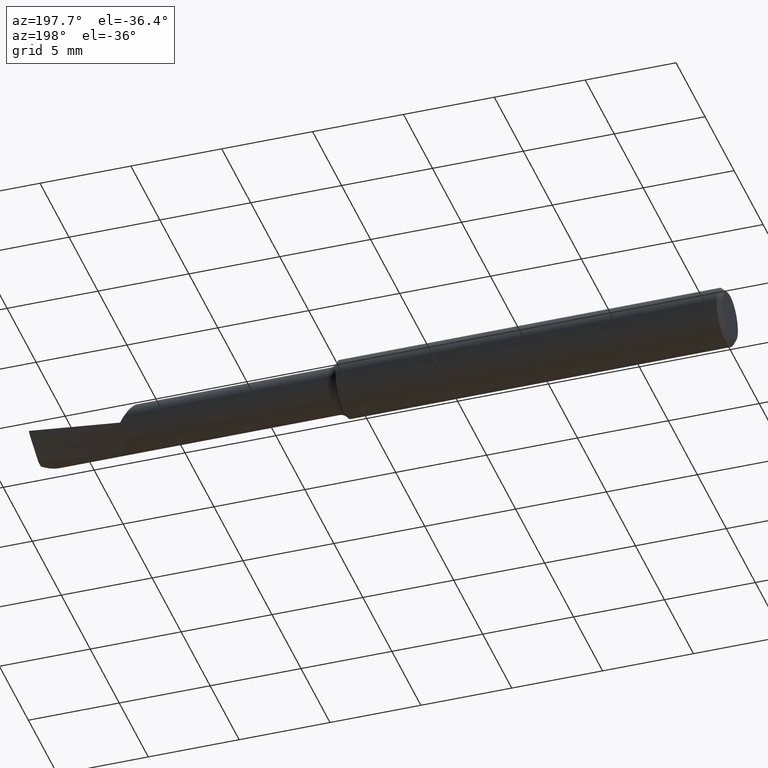
[diagram: clean part render]
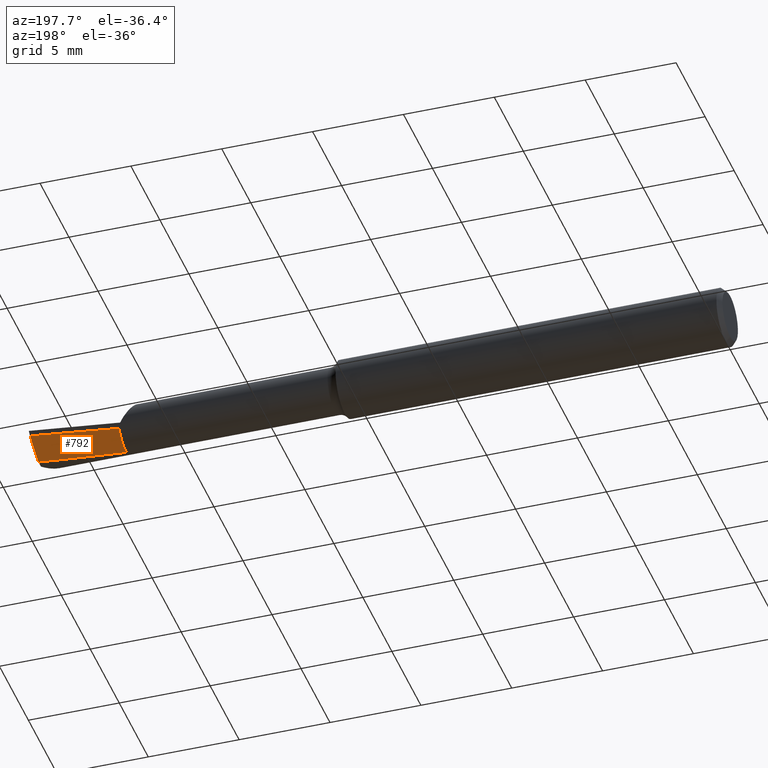
[diagram: same view with one face highlighted and labeled with its STEP entity id]
A machine part, auxiliary view. The second image highlights one B-rep face of the part: STEP entity #792.
In plain terms, the highlighted face is a freeform B-spline surface patch.
Its self-contained STEP definition (entity closure, byte-faithful):
#11 = CARTESIAN_POINT ( 'NONE',  ( 1.449918502535253895, 0.01159635594620415586, -0.05000000000000006523 ) ) ;
#20 = CARTESIAN_POINT ( 'NONE',  ( 1.495194514232144556, 0.02973981888379904209, -0.03691432926221542565 ) ) ;
#22 = EDGE_CURVE ( 'NONE', #158, #39, #393, .T. ) ;
#39 = VERTEX_POINT ( 'NONE', #513 ) ;
#40 = CARTESIAN_POINT ( 'NONE',  ( 0.4257981336613052559, -0.08019896073073715104, 0.07864321377065933150 ) ) ;
#50 = B_SPLINE_CURVE_WITH_KNOTS ( 'NONE', 3,
 ( #733, #365, #20, #247, #610, #569, #88 ),
 .UNSPECIFIED., .F., .F.,
 ( 4, 3, 4 ),
 ( 1.457340382744227116E-05, 0.0007332448227605268924, 0.001466534665384755997 ),
 .UNSPECIFIED. ) ;
#70 = CARTESIAN_POINT ( 'NONE',  ( 1.363095361444575326, 3.468166398206584357E-18, -0.05000000000000006523 ) ) ;
#73 = CARTESIAN_POINT ( 'NONE',  ( 1.345406193661088823, -0.002635090598034378184, -0.05000000000000007910 ) ) ;
#88 = CARTESIAN_POINT ( 'NONE',  ( 1.498722776678427238, 0.05686810316114023628, -0.01010808968688459326 ) ) ;
#90 = CARTESIAN_POINT ( 'NONE',  ( 1.500000000000000222, -0.01539026225835066035, -0.08235000000000000653 ) ) ;
#92 = CARTESIAN_POINT ( 'NONE',  ( 1.309999999999972742, 0.04156522573308535362, -0.02233867416924564114 ) ) ;
#93 = FACE_OUTER_BOUND ( 'NONE', #669, .T. ) ;
#103 = CARTESIAN_POINT ( 'NONE',  ( 1.141932711220991603, 0.02528029437720196934, -0.03022296809258294067 ) ) ;
#118 = CARTESIAN_POINT ( 'NONE',  ( 1.363095361444575326, 3.468166398206584357E-18, -0.05000000000000006523 ) ) ;
#147 = CARTESIAN_POINT ( 'NONE',  ( 0.4257981336613052559, -0.009884122193145427129, 0.004313754728955771119 ) ) ;
#149 = CARTESIAN_POINT ( 'NONE',  ( 1.310000000000000275, -0.005650954687783303100, -0.04830108489563753743 ) ) ;
#158 = VERTEX_POINT ( 'NONE', #654 ) ;
#159 = CARTESIAN_POINT ( 'NONE',  ( 0.6048443618259665699, -0.01131556821552820620, -0.008482866153767794001 ) ) ;
#167 = CARTESIAN_POINT ( 'NONE',  ( 1.310000000000000497, -0.001621584450601945863, -0.04608548385690176830 ) ) ;
#199 = CARTESIAN_POINT ( 'NONE',  ( 1.406425596318578553, 0.006454746538935473427, -0.05000000000000006523 ) ) ;
#206 = B_SPLINE_SURFACE_WITH_KNOTS ( 'NONE', 1, 3, ( 
 ( #451, #772, #103, #457, #159, #147 ),
 ( #90, #323, #635, #702, #398, #40 ) ),
 .UNSPECIFIED., .F., .F., .F.,
 ( 2, 2 ),
 ( 4, 2, 4 ),
 ( 0.000000000000000000, 1.000000000000000000 ),
 ( 0.000000000000000000, 0.5000000000000000000, 1.000000000000000000 ),
 .UNSPECIFIED. ) ;
#211 = CARTESIAN_POINT ( 'NONE',  ( 1.310000000000000497, -0.003636269586237861340, -0.04719328434527057803 ) ) ;
#247 = CARTESIAN_POINT ( 'NONE',  ( 1.496061078170350722, 0.03643970456771692540, -0.03033317487351361655 ) ) ;
#261 = VERTEX_POINT ( 'NONE', #118 ) ;
#265 = CARTESIAN_POINT ( 'NONE',  ( 1.310000000000000497, 0.02716962059800860987, -0.03025427423309719546 ) ) ;
#318 = EDGE_CURVE ( 'NONE', #338, #363, #50, .T. ) ;
#322 = EDGE_CURVE ( 'NONE', #158, #261, #742, .T. ) ;
#323 = CARTESIAN_POINT ( 'NONE',  ( 1.320933092725994573, -0.04750251535408022557, -0.07824890211669531526 ) ) ;
#338 = VERTEX_POINT ( 'NONE', #744 ) ;
#360 = CARTESIAN_POINT ( 'NONE',  ( 1.363095361444575326, 3.468166398206584357E-18, -0.05000000000000006523 ) ) ;
#363 = VERTEX_POINT ( 'NONE', #682 ) ;
#365 = CARTESIAN_POINT ( 'NONE',  ( 1.494330862874430066, 0.02301437643263124985, -0.04346994712089356783 ) ) ;
#368 = CARTESIAN_POINT ( 'NONE',  ( 1.309999999999972742, 0.04156522573308535362, -0.02233867416924564114 ) ) ;
#393 = B_SPLINE_CURVE_WITH_KNOTS ( 'NONE', 3,
 ( #768, #149, #211, #167, #396, #265, #92 ),
 .UNSPECIFIED., .F., .F.,
 ( 4, 3, 4 ),
 ( 0.001169591675574719204, 0.001344788353825811505, 0.002596627436074621514 ),
 .UNSPECIFIED. ) ;
#396 = CARTESIAN_POINT ( 'NONE',  ( 1.310000000000000497, 0.01277401720344453935, -0.03816987746231648160 ) ) ;
#398 = CARTESIAN_POINT ( 'NONE',  ( 0.6048983724169688658, -0.1014413605301318494, 0.04710220004854821091 ) ) ;
#434 = CARTESIAN_POINT ( 'NONE',  ( 1.327708185014136122, -0.005192571617713454164, -0.04979257458020232285 ) ) ;
#436 = CARTESIAN_POINT ( 'NONE',  ( 1.372902404703095547, 0.04709132456899228769, -0.01948917356754660546 ) ) ;
#449 = ORIENTED_EDGE ( 'NONE', *, *, #318, .F. ) ;
#451 = CARTESIAN_POINT ( 'NONE',  ( 1.500000000000000222, 0.05695973774164850290, -0.01000000000000000021 ) ) ;
#457 = CARTESIAN_POINT ( 'NONE',  ( 0.7838654224403138748, -0.002718624936347089922, -0.02165858660227658675 ) ) ;
#513 = CARTESIAN_POINT ( 'NONE',  ( 1.309999999999972742, 0.04156522573308535362, -0.02233867416924564114 ) ) ;
#544 = B_SPLINE_CURVE_WITH_KNOTS ( 'NONE', 3,
 ( #360, #199, #11, #551 ),
 .UNSPECIFIED., .F., .F.,
 ( 4, 4 ),
 ( 0.000000000000000000, 0.003337185326367081255 ),
 .UNSPECIFIED. ) ;
#551 = CARTESIAN_POINT ( 'NONE',  ( 1.493470132401837569, 0.01626392853829757359, -0.05000000000000007910 ) ) ;
#569 = CARTESIAN_POINT ( 'NONE',  ( 1.497832504978561019, 0.05008553490005101388, -0.01687644608973614888 ) ) ;
#585 = B_SPLINE_CURVE_WITH_KNOTS ( 'NONE', 3,
 ( #675, #671, #436, #368 ),
 .UNSPECIFIED., .F., .F.,
 ( 4, 4 ),
 ( 0.001188782244316611419, 0.1768620679707885446 ),
 .UNSPECIFIED. ) ;
#610 = CARTESIAN_POINT ( 'NONE',  ( 1.496945268702348120, 0.04327587120932407938, -0.02361815461528719157 ) ) ;
#635 = CARTESIAN_POINT ( 'NONE',  ( 1.141932711220991603, -0.07740640358648492869, -0.05606089519196540139 ) ) ;
#640 = EDGE_CURVE ( 'NONE', #363, #39, #585, .T. ) ;
#654 = CARTESIAN_POINT ( 'NONE',  ( 1.310000000000000275, -0.007665639755238228860, -0.04940888550800268120 ) ) ;
#659 = ORIENTED_EDGE ( 'NONE', *, *, #640, .F. ) ;
#669 = EDGE_LOOP ( 'NONE', ( #449, #730, #750, #771, #659 ) ) ;
#671 = CARTESIAN_POINT ( 'NONE',  ( 1.435808584236404339, 0.05234930255959671652, -0.01542397167338202535 ) ) ;
#675 = CARTESIAN_POINT ( 'NONE',  ( 1.498722776678427238, 0.05686810316114023628, -0.01010808968688459326 ) ) ;
#682 = CARTESIAN_POINT ( 'NONE',  ( 1.498722776678427238, 0.05686810316114023628, -0.01010808968688459326 ) ) ;
#690 = CARTESIAN_POINT ( 'NONE',  ( 1.310000000000000275, -0.007665639755238228860, -0.04940888550800268120 ) ) ;
#691 = EDGE_CURVE ( 'NONE', #261, #338, #544, .T. ) ;
#702 = CARTESIAN_POINT ( 'NONE',  ( 0.7838654224403138748, -0.1046489347206078363, 0.007018379115344508187 ) ) ;
#730 = ORIENTED_EDGE ( 'NONE', *, *, #691, .F. ) ;
#733 = CARTESIAN_POINT ( 'NONE',  ( 1.493470132401837569, 0.01626392853829757359, -0.05000000000000007910 ) ) ;
#742 = B_SPLINE_CURVE_WITH_KNOTS ( 'NONE', 3,
 ( #690, #434, #73, #70 ),
 .UNSPECIFIED., .F., .F.,
 ( 4, 4 ),
 ( 2.924343426157115507E-05, 0.001391931225923316627 ),
 .UNSPECIFIED. ) ;
#744 = CARTESIAN_POINT ( 'NONE',  ( 1.493470132401837569, 0.01626392853829757359, -0.05000000000000007910 ) ) ;
#750 = ORIENTED_EDGE ( 'NONE', *, *, #322, .F. ) ;
#768 = CARTESIAN_POINT ( 'NONE',  ( 1.310000000000000275, -0.007665639755238228860, -0.04940888550800268120 ) ) ;
#771 = ORIENTED_EDGE ( 'NONE', *, *, #22, .T. ) ;
#772 = CARTESIAN_POINT ( 'NONE',  ( 1.320933783932060734, 0.04412689582459452392, -0.02517820517104095435 ) ) ;
#792 = ADVANCED_FACE ( 'NONE', ( #93 ), #206, .T. ) ;